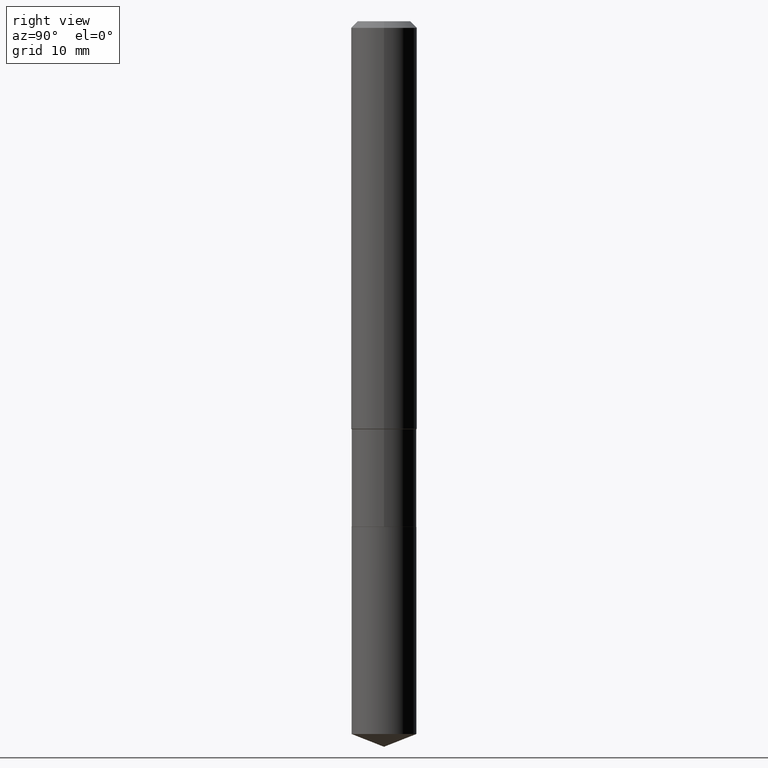
[diagram: clean part render]
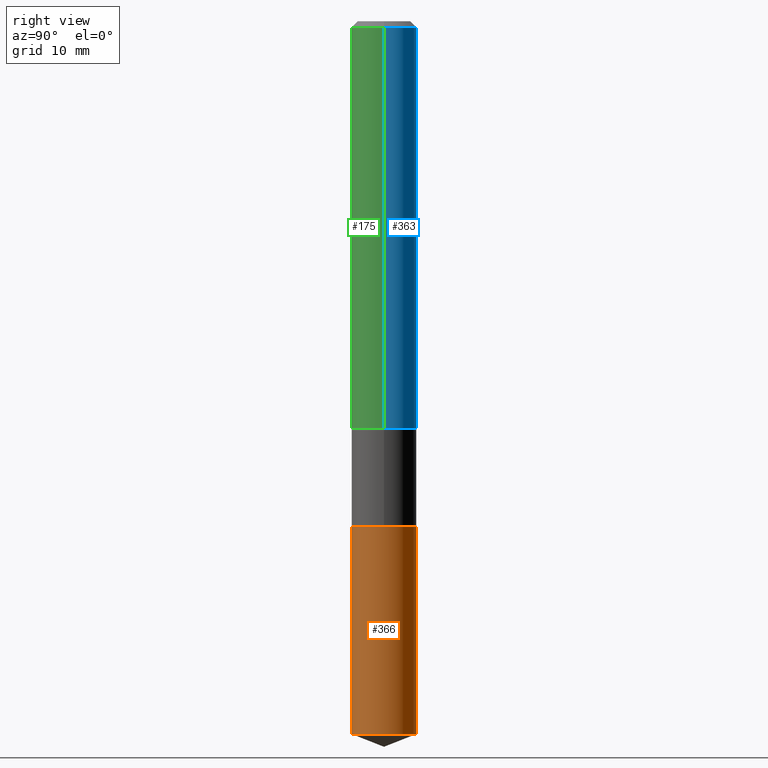
[diagram: same view with three faces highlighted in distinct colors, each labeled with its STEP entity id]
A machine part, right view with three faces highlighted in distinct colors.
Their STEP definitions:

[orange] entity #366 — the highlighted cylindrical surface (edge-blend (fillet) strip) has radius 2.9502 mm, axis along (-0, 0, 1).
#14 = DIRECTION ( 'NONE',  ( -2.445580598395875501E-29, 3.491321246034550326E-15, 1.000000000000000000 ) ) ;
#23 = DIRECTION ( 'NONE',  ( -6.982962677686265922E-15, -1.000000000000000000, 2.351999994545211393E-15 ) ) ;
#43 = DIRECTION ( 'NONE',  ( -6.982962677686265922E-15, -1.000000000000000000, 2.351999994545211393E-15 ) ) ;
#45 = CIRCLE ( 'NONE', #486, 0.1161500000000000032 ) ;
#68 = AXIS2_PLACEMENT_3D ( 'NONE', #428, #315, #23 ) ;
#77 = CARTESIAN_POINT ( 'NONE',  ( 4.428744008001282238E-29, -6.323072704644935995E-15, -1.810999999999999943 ) ) ;
#79 = EDGE_CURVE ( 'NONE', #153, #472, #45, .T. ) ;
#83 = VECTOR ( 'NONE', #105, 39.37007874015748143 ) ;
#86 = FACE_OUTER_BOUND ( 'NONE', #180, .T. ) ;
#88 = CARTESIAN_POINT ( 'NONE',  ( -8.110711150131975245E-16, -0.1161500000000089128, -2.552647298257324060 ) ) ;
#100 = EDGE_CURVE ( 'NONE', #153, #436, #479, .T. ) ;
#105 = DIRECTION ( 'NONE',  ( -2.445580598395875221E-29, 3.491321246034550326E-15, 1.000000000000000000 ) ) ;
#138 = CARTESIAN_POINT ( 'NONE',  ( 8.252953875854189062E-16, 0.1161499999999936888, -1.811000000000000165 ) ) ;
#148 = LINE ( 'NONE', #294, #83 ) ;
#153 = VERTEX_POINT ( 'NONE', #88 ) ;
#164 = ORIENTED_EDGE ( 'NONE', *, *, #100, .F. ) ;
#180 = EDGE_LOOP ( 'NONE', ( #401, #394, #257, #164 ) ) ;
#218 = CIRCLE ( 'NONE', #68, 0.1161500000000000032 ) ;
#228 = DIRECTION ( 'NONE',  ( -2.445580598395875501E-29, 3.491321246034550326E-15, 1.000000000000000000 ) ) ;
#257 = ORIENTED_EDGE ( 'NONE', *, *, #290, .F. ) ;
#290 = EDGE_CURVE ( 'NONE', #436, #320, #218, .T. ) ;
#294 = CARTESIAN_POINT ( 'NONE',  ( 8.252953875854005651E-16, 0.1161499999999936888, -1.811000000000000165 ) ) ;
#295 = VECTOR ( 'NONE', #482, 39.37007874015748143 ) ;
#315 = DIRECTION ( 'NONE',  ( -2.445580598395875501E-29, 3.491321246034550326E-15, 1.000000000000000000 ) ) ;
#320 = VERTEX_POINT ( 'NONE', #138 ) ;
#324 = AXIS2_PLACEMENT_3D ( 'NONE', #77, #228, #43 ) ;
#331 = DIRECTION ( 'NONE',  ( -6.982962677686265922E-15, -1.000000000000000000, 4.703999989090422785E-15 ) ) ;
#333 = CARTESIAN_POINT ( 'NONE',  ( -8.110711150132155697E-16, -0.1161500000000063176, -1.810999999999999721 ) ) ;
#350 = CARTESIAN_POINT ( 'NONE',  ( 6.242502251472113961E-29, -8.912401674114856176E-15, -2.552647298257324504 ) ) ;
#366 = ADVANCED_FACE ( 'NONE', ( #86 ), #411, .T. ) ;
#394 = ORIENTED_EDGE ( 'NONE', *, *, #454, .T. ) ;
#401 = ORIENTED_EDGE ( 'NONE', *, *, #79, .T. ) ;
#406 = CARTESIAN_POINT ( 'NONE',  ( -8.110711150132155697E-16, -0.1161500000000063176, -1.810999999999999721 ) ) ;
#411 = CYLINDRICAL_SURFACE ( 'NONE', #324, 0.1161500000000000032 ) ;
#420 = CARTESIAN_POINT ( 'NONE',  ( 8.252953875854189062E-16, 0.1161499999999911215, -2.552647298257324948 ) ) ;
#428 = CARTESIAN_POINT ( 'NONE',  ( 4.428744008001282238E-29, -6.323072704644935995E-15, -1.810999999999999943 ) ) ;
#436 = VERTEX_POINT ( 'NONE', #333 ) ;
#454 = EDGE_CURVE ( 'NONE', #472, #320, #148, .T. ) ;
#472 = VERTEX_POINT ( 'NONE', #420 ) ;
#479 = LINE ( 'NONE', #406, #295 ) ;
#482 = DIRECTION ( 'NONE',  ( -2.445580598395875221E-29, 3.491321246034550326E-15, 1.000000000000000000 ) ) ;
#486 = AXIS2_PLACEMENT_3D ( 'NONE', #350, #14, #331 ) ;

[blue] entity #363 — the highlighted cylindrical surface (edge-blend (fillet) strip) has radius 2.9997 mm, axis along (-0, 0, 1).
#7 = CARTESIAN_POINT ( 'NONE',  ( 0.000000000000000000, 0.000000000000000000, 0.000000000000000000 ) ) ;
#8 = CIRCLE ( 'NONE', #376, 0.1180999999999999966 ) ;
#10 = CARTESIAN_POINT ( 'NONE',  ( 0.1180999999999999966, -9.071566814582237199E-16, -0.02362000000000014088 ) ) ;
#13 = DIRECTION ( 'NONE',  ( 1.000000000000000000, -6.982962677686266711E-15, 0.000000000000000000 ) ) ;
#30 = ORIENTED_EDGE ( 'NONE', *, *, #338, .T. ) ;
#34 = VERTEX_POINT ( 'NONE', #10 ) ;
#50 = LINE ( 'NONE', #344, #137 ) ;
#58 = EDGE_CURVE ( 'NONE', #219, #34, #253, .T. ) ;
#73 = AXIS2_PLACEMENT_3D ( 'NONE', #249, #452, #271 ) ;
#76 = CARTESIAN_POINT ( 'NONE',  ( 5.776197320209327532E-31, -8.246878922347559293E-17, -0.02362000000000014088 ) ) ;
#113 = DIRECTION ( 'NONE',  ( -2.445468806185136597E-29, 3.491481338843145583E-15, 1.000000000000000000 ) ) ;
#128 = EDGE_CURVE ( 'NONE', #34, #357, #8, .T. ) ;
#137 = VECTOR ( 'NONE', #380, 39.37007874015748143 ) ;
#160 = EDGE_CURVE ( 'NONE', #301, #357, #50, .T. ) ;
#219 = VERTEX_POINT ( 'NONE', #460 ) ;
#221 = ORIENTED_EDGE ( 'NONE', *, *, #58, .F. ) ;
#249 = CARTESIAN_POINT ( 'NONE',  ( 3.568550355425659512E-29, -5.094944143706858142E-15, -1.459249999999999492 ) ) ;
#253 = LINE ( 'NONE', #291, #434 ) ;
#260 = DIRECTION ( 'NONE',  ( 1.000000000000000000, -6.982962677686266711E-15, 4.876176775795936353E-29 ) ) ;
#271 = DIRECTION ( 'NONE',  ( 1.000000000000000000, -6.982962677686263555E-15, 0.000000000000000000 ) ) ;
#291 = CARTESIAN_POINT ( 'NONE',  ( 0.1181000000000000799, -8.246878922347486570E-16, 5.758764772215004644E-30 ) ) ;
#301 = VERTEX_POINT ( 'NONE', #321 ) ;
#311 = FACE_OUTER_BOUND ( 'NONE', #375, .T. ) ;
#321 = CARTESIAN_POINT ( 'NONE',  ( -0.1181000000000001632, -4.255793172774178367E-15, -1.459249999999999492 ) ) ;
#338 = EDGE_CURVE ( 'NONE', #219, #301, #384, .T. ) ;
#344 = CARTESIAN_POINT ( 'NONE',  ( -0.1181000000000000799, 8.391509709326788873E-16, -5.809262341591047988E-30 ) ) ;
#357 = VERTEX_POINT ( 'NONE', #378 ) ;
#363 = ADVANCED_FACE ( 'NONE', ( #311 ), #423, .T. ) ;
#375 = EDGE_LOOP ( 'NONE', ( #30, #405, #474, #221 ) ) ;
#376 = AXIS2_PLACEMENT_3D ( 'NONE', #76, #113, #13 ) ;
#377 = DIRECTION ( 'NONE',  ( -2.445468806185136877E-29, 3.491481338843145188E-15, 1.000000000000000000 ) ) ;
#378 = CARTESIAN_POINT ( 'NONE',  ( -0.1180999999999999966, -1.749555495532487419E-15, -0.02362000000000014088 ) ) ;
#380 = DIRECTION ( 'NONE',  ( -2.445468806185136877E-29, 3.491481338843145188E-15, 1.000000000000000000 ) ) ;
#384 = CIRCLE ( 'NONE', #73, 0.1181000000000001632 ) ;
#405 = ORIENTED_EDGE ( 'NONE', *, *, #160, .T. ) ;
#423 = CYLINDRICAL_SURFACE ( 'NONE', #431, 0.1181000000000000799 ) ;
#431 = AXIS2_PLACEMENT_3D ( 'NONE', #7, #443, #260 ) ;
#434 = VECTOR ( 'NONE', #377, 39.37007874015748143 ) ;
#443 = DIRECTION ( 'NONE',  ( -2.445468806185136597E-29, 3.491481338843145583E-15, 1.000000000000000000 ) ) ;
#452 = DIRECTION ( 'NONE',  ( -2.445468806185136597E-29, 3.491481338843145583E-15, 1.000000000000000000 ) ) ;
#460 = CARTESIAN_POINT ( 'NONE',  ( 0.1181000000000001632, -5.919632035941607193E-15, -1.459249999999999492 ) ) ;
#474 = ORIENTED_EDGE ( 'NONE', *, *, #128, .F. ) ;

[green] entity #175 — the highlighted cylindrical surface (edge-blend (fillet) strip) has radius 2.9997 mm, axis along (-0, 0, 1).
#10 = CARTESIAN_POINT ( 'NONE',  ( 0.1180999999999999966, -9.071566814582237199E-16, -0.02362000000000014088 ) ) ;
#26 = DIRECTION ( 'NONE',  ( 1.000000000000000000, -6.982962677686263555E-15, 0.000000000000000000 ) ) ;
#34 = VERTEX_POINT ( 'NONE', #10 ) ;
#41 = AXIS2_PLACEMENT_3D ( 'NONE', #372, #192, #123 ) ;
#50 = LINE ( 'NONE', #344, #137 ) ;
#58 = EDGE_CURVE ( 'NONE', #219, #34, #253, .T. ) ;
#60 = CARTESIAN_POINT ( 'NONE',  ( 3.568550355425659512E-29, -5.094944143706858142E-15, -1.459249999999999492 ) ) ;
#63 = AXIS2_PLACEMENT_3D ( 'NONE', #60, #176, #26 ) ;
#65 = EDGE_CURVE ( 'NONE', #301, #219, #316, .T. ) ;
#74 = ORIENTED_EDGE ( 'NONE', *, *, #58, .T. ) ;
#85 = DIRECTION ( 'NONE',  ( 1.000000000000000000, -6.982962677686266711E-15, 0.000000000000000000 ) ) ;
#96 = AXIS2_PLACEMENT_3D ( 'NONE', #441, #141, #85 ) ;
#102 = CIRCLE ( 'NONE', #96, 0.1180999999999999966 ) ;
#106 = EDGE_CURVE ( 'NONE', #357, #34, #102, .T. ) ;
#123 = DIRECTION ( 'NONE',  ( 1.000000000000000000, -6.982962677686266711E-15, 4.876176775795936353E-29 ) ) ;
#129 = ORIENTED_EDGE ( 'NONE', *, *, #65, .T. ) ;
#137 = VECTOR ( 'NONE', #380, 39.37007874015748143 ) ;
#141 = DIRECTION ( 'NONE',  ( -2.445468806185136597E-29, 3.491481338843145583E-15, 1.000000000000000000 ) ) ;
#160 = EDGE_CURVE ( 'NONE', #301, #357, #50, .T. ) ;
#175 = ADVANCED_FACE ( 'NONE', ( #238 ), #227, .T. ) ;
#176 = DIRECTION ( 'NONE',  ( -2.445468806185136597E-29, 3.491481338843145583E-15, 1.000000000000000000 ) ) ;
#192 = DIRECTION ( 'NONE',  ( -2.445468806185136597E-29, 3.491481338843145583E-15, 1.000000000000000000 ) ) ;
#215 = EDGE_LOOP ( 'NONE', ( #413, #129, #74, #461 ) ) ;
#219 = VERTEX_POINT ( 'NONE', #460 ) ;
#227 = CYLINDRICAL_SURFACE ( 'NONE', #41, 0.1181000000000000799 ) ;
#238 = FACE_OUTER_BOUND ( 'NONE', #215, .T. ) ;
#253 = LINE ( 'NONE', #291, #434 ) ;
#291 = CARTESIAN_POINT ( 'NONE',  ( 0.1181000000000000799, -8.246878922347486570E-16, 5.758764772215004644E-30 ) ) ;
#301 = VERTEX_POINT ( 'NONE', #321 ) ;
#316 = CIRCLE ( 'NONE', #63, 0.1181000000000001632 ) ;
#321 = CARTESIAN_POINT ( 'NONE',  ( -0.1181000000000001632, -4.255793172774178367E-15, -1.459249999999999492 ) ) ;
#344 = CARTESIAN_POINT ( 'NONE',  ( -0.1181000000000000799, 8.391509709326788873E-16, -5.809262341591047988E-30 ) ) ;
#357 = VERTEX_POINT ( 'NONE', #378 ) ;
#372 = CARTESIAN_POINT ( 'NONE',  ( 0.000000000000000000, 0.000000000000000000, 0.000000000000000000 ) ) ;
#377 = DIRECTION ( 'NONE',  ( -2.445468806185136877E-29, 3.491481338843145188E-15, 1.000000000000000000 ) ) ;
#378 = CARTESIAN_POINT ( 'NONE',  ( -0.1180999999999999966, -1.749555495532487419E-15, -0.02362000000000014088 ) ) ;
#380 = DIRECTION ( 'NONE',  ( -2.445468806185136877E-29, 3.491481338843145188E-15, 1.000000000000000000 ) ) ;
#413 = ORIENTED_EDGE ( 'NONE', *, *, #160, .F. ) ;
#434 = VECTOR ( 'NONE', #377, 39.37007874015748143 ) ;
#441 = CARTESIAN_POINT ( 'NONE',  ( 5.776197320209327532E-31, -8.246878922347559293E-17, -0.02362000000000014088 ) ) ;
#460 = CARTESIAN_POINT ( 'NONE',  ( 0.1181000000000001632, -5.919632035941607193E-15, -1.459249999999999492 ) ) ;
#461 = ORIENTED_EDGE ( 'NONE', *, *, #106, .F. ) ;